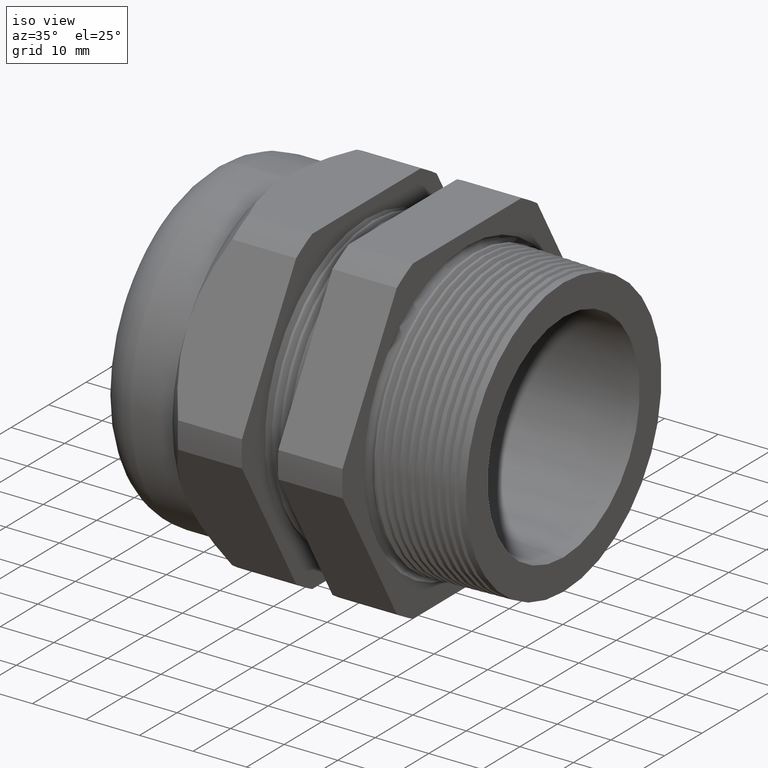
[diagram: clean part render]
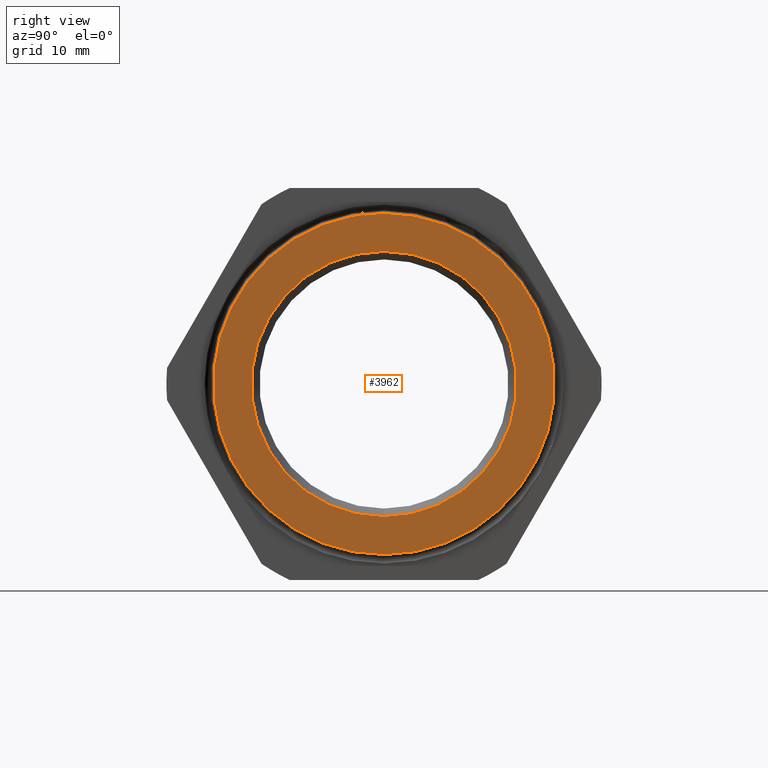
[diagram: tour spotlight — one face highlighted and labeled with its STEP entity id]
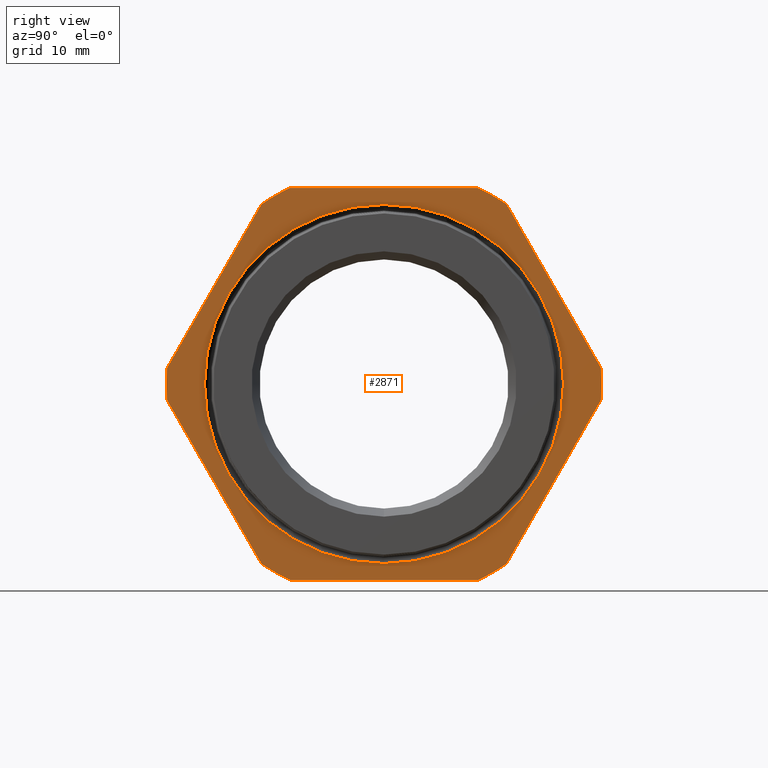
[diagram: tour spotlight — one face highlighted and labeled with its STEP entity id]
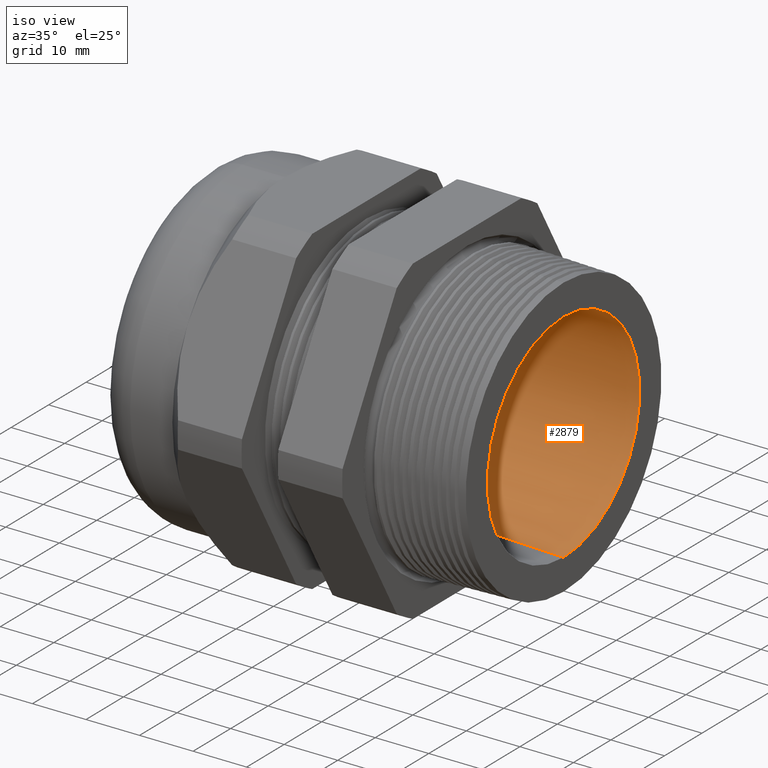
[diagram: tour spotlight — one face highlighted and labeled with its STEP entity id]
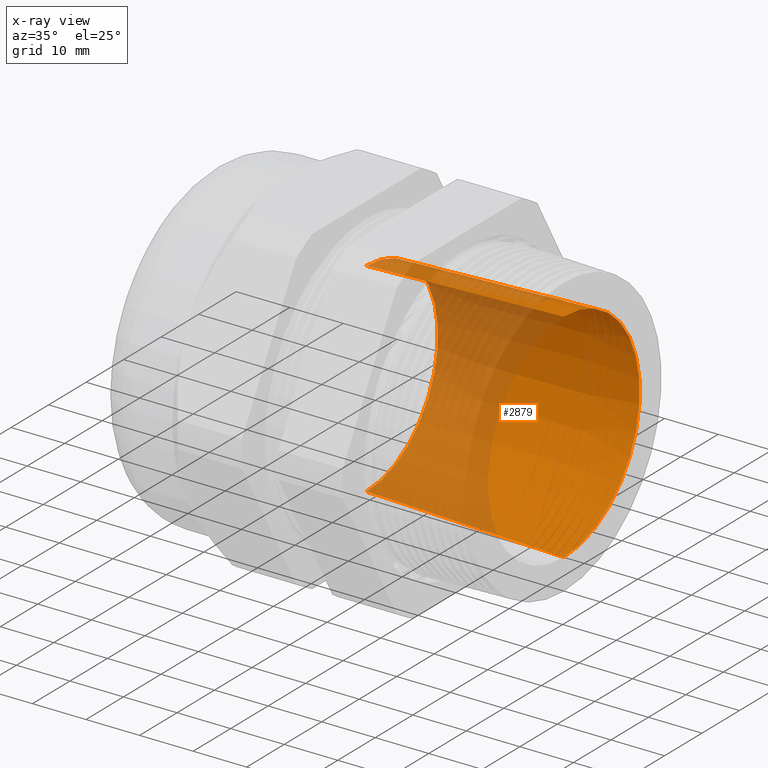
[diagram: x-ray of the same camera — body ghosted, this tour face saturated]
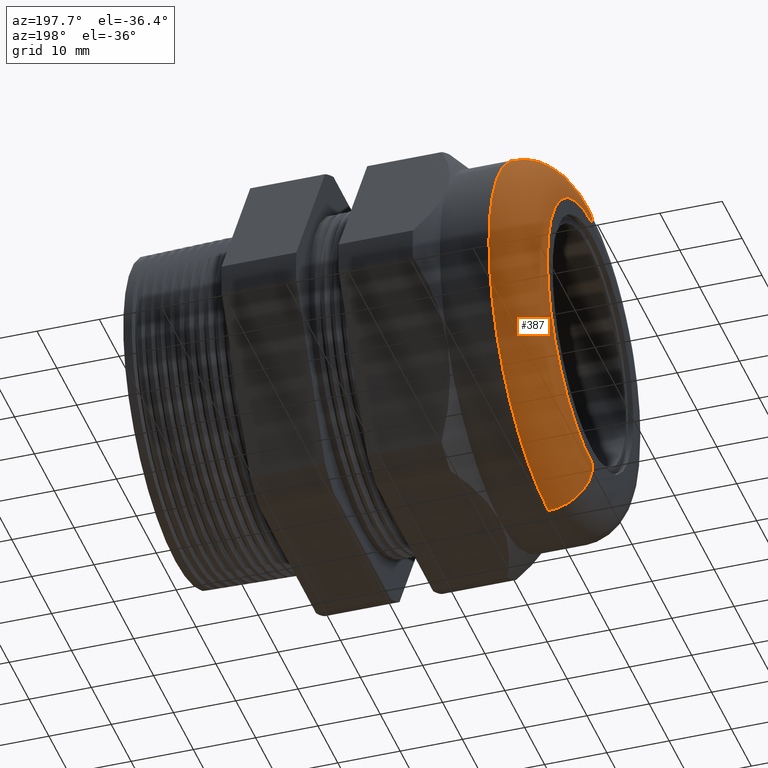
[diagram: tour spotlight — one face highlighted and labeled with its STEP entity id]
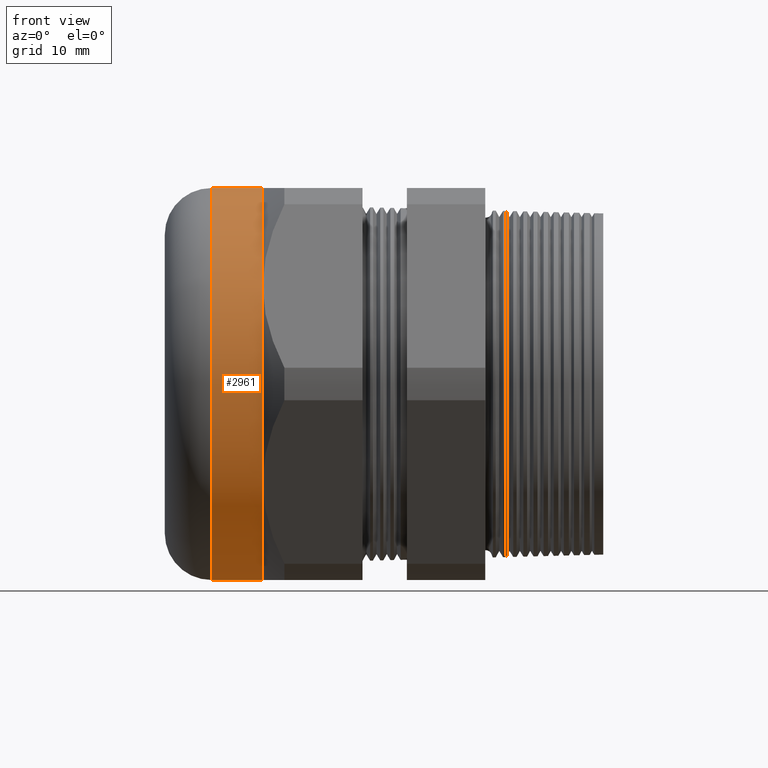
[diagram: tour spotlight — one face highlighted and labeled with its STEP entity id]
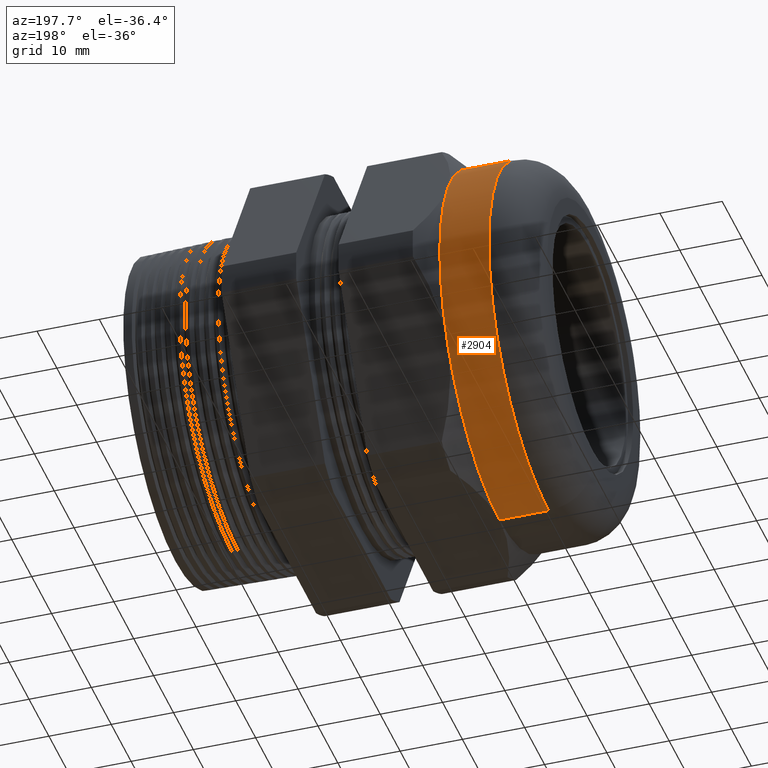
[diagram: tour spotlight — one face highlighted and labeled with its STEP entity id]
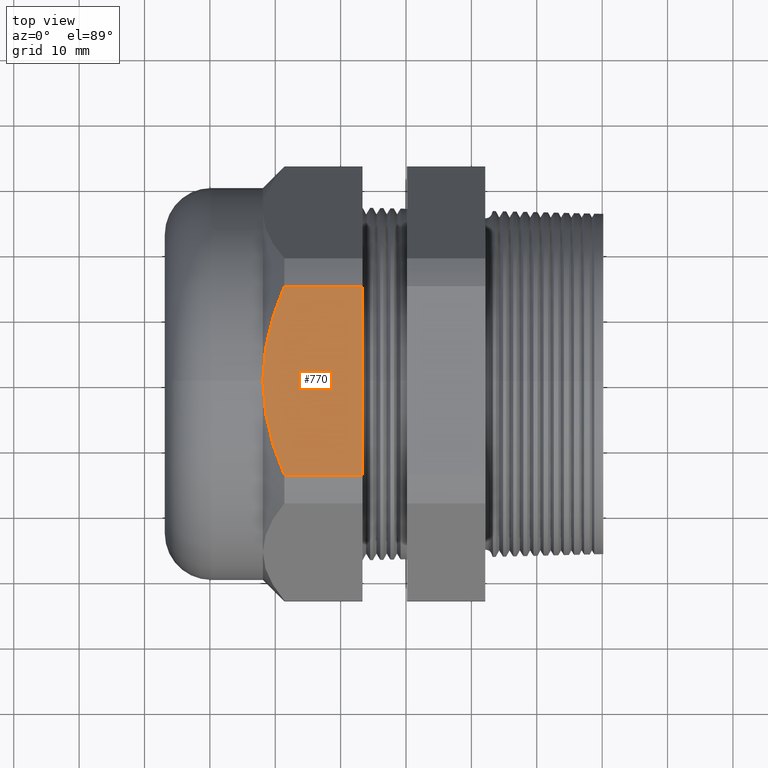
[diagram: tour spotlight — one face highlighted and labeled with its STEP entity id]
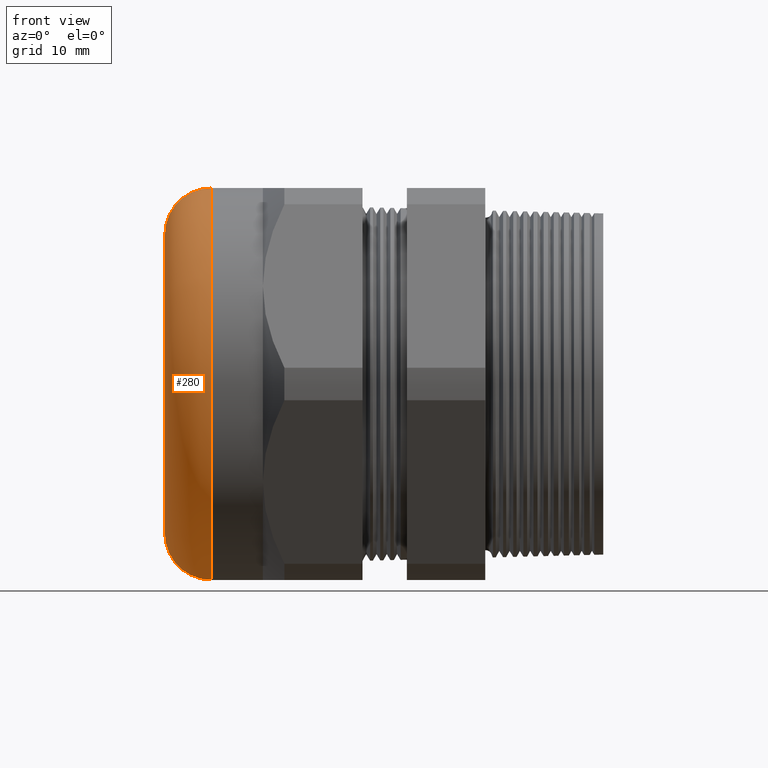
[diagram: tour spotlight — one face highlighted and labeled with its STEP entity id]
A machine part: a face-by-face anatomy tour. The part has 152 B-rep faces; the first image is the clean iso view, then the 8 largest visible faces are spotlighted one at a time (largest first), each with its STEP entity span.

Face 1 — right view, entity #3962. In plain terms, the highlighted planar face has unit normal (1, 0, 0).
Definition (entity closure, byte-faithful):
#44 = VERTEX_POINT ( 'NONE', #590 ) ;
#49 = EDGE_CURVE ( 'NONE', #44, #3858, #641, .T. ) ;
#71 = VERTEX_POINT ( 'NONE', #654 ) ;
#81 = EDGE_CURVE ( 'NONE', #89, #71, #695, .T. ) ;
#89 = VERTEX_POINT ( 'NONE', #677 ) ;
#590 = CARTESIAN_POINT ( 'NONE',  ( 0.3999999999999999700, 1.258626897728897300E-016, -1.027044815981552200 ) ) ;
#634 = DIRECTION ( 'NONE',  ( 0.0000000000000000000, 0.0000000000000000000, -1.000000000000000000 ) ) ;
#635 = DIRECTION ( 'NONE',  ( 1.000000000000000000, 0.0000000000000000000, 0.0000000000000000000 ) ) ;
#636 = CARTESIAN_POINT ( 'NONE',  ( 0.3999999999999999700, 0.0000000000000000000, 0.0000000000000000000 ) ) ;
#637 = AXIS2_PLACEMENT_3D ( 'NONE', #636, #635, #634 ) ;
#641 = CIRCLE ( 'NONE', #637, 1.027044815981552200 ) ;
#654 = CARTESIAN_POINT ( 'NONE',  ( 0.4000000000000000800, 0.0000000000000000000, -0.7987499999999999600 ) ) ;
#677 = CARTESIAN_POINT ( 'NONE',  ( 0.4000000000000000800, 9.781866308189482700E-017, 0.7987499999999999600 ) ) ;
#691 = DIRECTION ( 'NONE',  ( 0.0000000000000000000, 0.0000000000000000000, -1.000000000000000000 ) ) ;
#692 = DIRECTION ( 'NONE',  ( 1.000000000000000000, 0.0000000000000000000, 0.0000000000000000000 ) ) ;
#693 = CARTESIAN_POINT ( 'NONE',  ( 0.4000000000000000800, 0.0000000000000000000, 0.0000000000000000000 ) ) ;
#694 = AXIS2_PLACEMENT_3D ( 'NONE', #693, #692, #691 ) ;
#695 = CIRCLE ( 'NONE', #694, 0.7987499999999999600 ) ;
#2573 = CARTESIAN_POINT ( 'NONE',  ( 0.3999999999999999700, 0.0000000000000000000, 1.027044815981552200 ) ) ;
#2880 = ORIENTED_EDGE ( 'NONE', *, *, #81, .F. ) ;
#3314 = DIRECTION ( 'NONE',  ( 0.0000000000000000000, 0.0000000000000000000, -1.000000000000000000 ) ) ;
#3315 = DIRECTION ( 'NONE',  ( 1.000000000000000000, 0.0000000000000000000, 0.0000000000000000000 ) ) ;
#3316 = CARTESIAN_POINT ( 'NONE',  ( 0.3999999999999999700, 0.0000000000000000000, 0.0000000000000000000 ) ) ;
#3317 = AXIS2_PLACEMENT_3D ( 'NONE', #3316, #3315, #3314 ) ;
#3318 = CIRCLE ( 'NONE', #3317, 1.027044815981552200 ) ;
#3324 = DIRECTION ( 'NONE',  ( 0.0000000000000000000, 0.0000000000000000000, -1.000000000000000000 ) ) ;
#3325 = DIRECTION ( 'NONE',  ( 1.000000000000000000, 0.0000000000000000000, 0.0000000000000000000 ) ) ;
#3326 = CARTESIAN_POINT ( 'NONE',  ( 0.4000000000000000200, 0.7987499999999999600, 0.0000000000000000000 ) ) ;
#3327 = AXIS2_PLACEMENT_3D ( 'NONE', #3326, #3325, #3324 ) ;
#3328 = PLANE ( 'NONE',  #3327 ) ;
#3329 = FACE_BOUND ( 'NONE', #3959, .T. ) ;
#3330 = FACE_OUTER_BOUND ( 'NONE', #3960, .T. ) ;
#3335 = DIRECTION ( 'NONE',  ( 0.0000000000000000000, 0.0000000000000000000, -1.000000000000000000 ) ) ;
#3336 = DIRECTION ( 'NONE',  ( 1.000000000000000000, 0.0000000000000000000, 0.0000000000000000000 ) ) ;
#3337 = AXIS2_PLACEMENT_3D ( 'NONE', #3343, #3336, #3335 ) ;
#3338 = CIRCLE ( 'NONE', #3337, 0.7987499999999999600 ) ;
#3343 = CARTESIAN_POINT ( 'NONE',  ( 0.4000000000000000800, 0.0000000000000000000, 0.0000000000000000000 ) ) ;
#3858 = VERTEX_POINT ( 'NONE', #2573 ) ;
#3954 = EDGE_CURVE ( 'NONE', #71, #89, #3338, .T. ) ;
#3955 = ORIENTED_EDGE ( 'NONE', *, *, #3954, .F. ) ;
#3959 = EDGE_LOOP ( 'NONE', ( #3955, #2880 ) ) ;
#3960 = EDGE_LOOP ( 'NONE', ( #3964, #3965 ) ) ;
#3962 = ADVANCED_FACE ( 'NONE', ( #3330, #3329 ), #3328, .T. ) ;
#3964 = ORIENTED_EDGE ( 'NONE', *, *, #3967, .T. ) ;
#3965 = ORIENTED_EDGE ( 'NONE', *, *, #49, .T. ) ;
#3967 = EDGE_CURVE ( 'NONE', #3858, #44, #3318, .T. ) ;

Face 2 — right view, entity #2871. In plain terms, the highlighted planar face has unit normal (1, 0, 0).
Definition (entity closure, byte-faithful):
#352 = VERTEX_POINT ( 'NONE', #1215 ) ;
#354 = EDGE_CURVE ( 'NONE', #355, #352, #1214, .T. ) ;
#355 = VERTEX_POINT ( 'NONE', #1209 ) ;
#1209 = CARTESIAN_POINT ( 'NONE',  ( -0.3100000000000000000, 0.0000000000000000000, -1.080624318341934600 ) ) ;
#1210 = DIRECTION ( 'NONE',  ( 0.0000000000000000000, 0.0000000000000000000, -1.000000000000000000 ) ) ;
#1211 = DIRECTION ( 'NONE',  ( -1.000000000000000000, 0.0000000000000000000, 0.0000000000000000000 ) ) ;
#1212 = CARTESIAN_POINT ( 'NONE',  ( -0.3100000000000000000, 0.0000000000000000000, 0.0000000000000000000 ) ) ;
#1213 = AXIS2_PLACEMENT_3D ( 'NONE', #1212, #1211, #1210 ) ;
#1214 = CIRCLE ( 'NONE', #1213, 1.080624318341934600 ) ;
#1215 = CARTESIAN_POINT ( 'NONE',  ( -0.3100000000000000000, 1.323383112538240800E-016, 1.080624318341934600 ) ) ;
#2102 = DIRECTION ( 'NONE',  ( 0.0000000000000000000, 0.0000000000000000000, -1.000000000000000000 ) ) ;
#2103 = DIRECTION ( 'NONE',  ( 1.000000000000000000, 0.0000000000000000000, 0.0000000000000000000 ) ) ;
#2104 = CARTESIAN_POINT ( 'NONE',  ( -0.3100000000000000000, 2.359999999999999900, 0.0000000000000000000 ) ) ;
#2105 = AXIS2_PLACEMENT_3D ( 'NONE', #2104, #2103, #2102 ) ;
#2106 = PLANE ( 'NONE',  #2105 ) ;
#2107 = FACE_BOUND ( 'NONE', #4118, .T. ) ;
#2108 = FACE_OUTER_BOUND ( 'NONE', #2868, .T. ) ;
#2109 = CARTESIAN_POINT ( 'NONE',  ( -0.3100000000000000000, 1.306152847968161000, -0.09767690486835835200 ) ) ;
#2110 = CARTESIAN_POINT ( 'NONE',  ( -0.3100000000000000000, 0.7376671049631152700, -1.082323095131641400 ) ) ;
#2111 = DIRECTION ( 'NONE',  ( 0.0000000000000000000, 0.4999999999999998300, 0.8660254037844386000 ) ) ;
#2112 = VECTOR ( 'NONE', #2111, 39.37007874015748900 ) ;
#2113 = CARTESIAN_POINT ( 'NONE',  ( -0.3100000000000000000, 1.611909976465637700, 0.4319099764656373400 ) ) ;
#2118 = LINE ( 'NONE', #2113, #2112 ) ;
#2866 = EDGE_CURVE ( 'NONE', #2867, #2870, #2118, .T. ) ;
#2867 = VERTEX_POINT ( 'NONE', #2110 ) ;
#2868 = EDGE_LOOP ( 'NONE', ( #2869, #4174, #4176, #4173, #4167, #4164, #4158, #4161, #4156, #4154, #4142, #4117 ) ) ;
#2869 = ORIENTED_EDGE ( 'NONE', *, *, #2866, .T. ) ;
#2870 = VERTEX_POINT ( 'NONE', #2109 ) ;
#2871 = ADVANCED_FACE ( 'NONE', ( #2108, #2107 ), #2106, .T. ) ;
#3567 = CIRCLE ( 'NONE', #3629, 1.080624318341934600 ) ;
#3611 = CARTESIAN_POINT ( 'NONE',  ( -0.3100000000000000000, 0.5684857430050462800, -1.179999999999999900 ) ) ;
#3612 = DIRECTION ( 'NONE',  ( 0.0000000000000000000, 1.000000000000000000, 0.0000000000000000000 ) ) ;
#3613 = VECTOR ( 'NONE', #3612, 39.37007874015748100 ) ;
#3614 = CARTESIAN_POINT ( 'NONE',  ( -0.3100000000000000000, 2.359999999999999900, -1.180000000000000200 ) ) ;
#3615 = LINE ( 'NONE', #3614, #3613 ) ;
#3616 = DIRECTION ( 'NONE',  ( 0.0000000000000000000, 0.0000000000000000000, -1.000000000000000000 ) ) ;
#3617 = DIRECTION ( 'NONE',  ( 1.000000000000000000, 0.0000000000000000000, 0.0000000000000000000 ) ) ;
#3618 = CARTESIAN_POINT ( 'NONE',  ( -0.3100000000000000000, 0.0000000000000000000, 0.0000000000000000000 ) ) ;
#3619 = AXIS2_PLACEMENT_3D ( 'NONE', #3618, #3617, #3616 ) ;
#3620 = CIRCLE ( 'NONE', #3619, 1.309799999999999900 ) ;
#3626 = DIRECTION ( 'NONE',  ( 0.0000000000000000000, 0.0000000000000000000, -1.000000000000000000 ) ) ;
#3627 = DIRECTION ( 'NONE',  ( -1.000000000000000000, 0.0000000000000000000, 0.0000000000000000000 ) ) ;
#3628 = CARTESIAN_POINT ( 'NONE',  ( -0.3100000000000000000, 0.0000000000000000000, 0.0000000000000000000 ) ) ;
#3629 = AXIS2_PLACEMENT_3D ( 'NONE', #3628, #3627, #3626 ) ;
#3630 = AXIS2_PLACEMENT_3D ( 'NONE', #3636, #3689, #3688 ) ;
#3631 = CIRCLE ( 'NONE', #3630, 1.309800000000000100 ) ;
#3636 = CARTESIAN_POINT ( 'NONE',  ( -0.3100000000000000000, 0.0000000000000000000, 0.0000000000000000000 ) ) ;
#3639 = CARTESIAN_POINT ( 'NONE',  ( -0.3100000000000000000, -0.5684857430050462800, -1.180000000000000200 ) ) ;
#3661 = CARTESIAN_POINT ( 'NONE',  ( -0.3100000000000000000, -1.306152847968161000, -0.09767690486835753400 ) ) ;
#3662 = DIRECTION ( 'NONE',  ( 0.0000000000000000000, 0.0000000000000000000, -1.000000000000000000 ) ) ;
#3663 = DIRECTION ( 'NONE',  ( 1.000000000000000000, 0.0000000000000000000, 0.0000000000000000000 ) ) ;
#3664 = CARTESIAN_POINT ( 'NONE',  ( -0.3100000000000000000, 0.0000000000000000000, 0.0000000000000000000 ) ) ;
#3665 = AXIS2_PLACEMENT_3D ( 'NONE', #3664, #3663, #3662 ) ;
#3666 = CIRCLE ( 'NONE', #3665, 1.309800000000000100 ) ;
#3672 = CARTESIAN_POINT ( 'NONE',  ( -0.3100000000000000000, -0.7376671049631138300, -1.082323095131642500 ) ) ;
#3673 = DIRECTION ( 'NONE',  ( 0.0000000000000000000, 0.5000000000000000000, -0.8660254037844386000 ) ) ;
#3674 = VECTOR ( 'NONE', #3673, 39.37007874015748100 ) ;
#3675 = CARTESIAN_POINT ( 'NONE',  ( -0.3100000000000000000, -0.4319099764656371700, -1.611909976465637500 ) ) ;
#3676 = LINE ( 'NONE', #3675, #3674 ) ;
#3688 = DIRECTION ( 'NONE',  ( 0.0000000000000000000, 0.0000000000000000000, -1.000000000000000000 ) ) ;
#3689 = DIRECTION ( 'NONE',  ( 1.000000000000000000, 0.0000000000000000000, 0.0000000000000000000 ) ) ;
#3690 = DIRECTION ( 'NONE',  ( 0.0000000000000000000, 0.0000000000000000000, -1.000000000000000000 ) ) ;
#3691 = DIRECTION ( 'NONE',  ( 1.000000000000000000, 0.0000000000000000000, 0.0000000000000000000 ) ) ;
#3692 = CARTESIAN_POINT ( 'NONE',  ( -0.3100000000000000000, 0.0000000000000000000, 0.0000000000000000000 ) ) ;
#3693 = AXIS2_PLACEMENT_3D ( 'NONE', #3692, #3691, #3690 ) ;
#3694 = CIRCLE ( 'NONE', #3693, 1.309800000000000100 ) ;
#3695 = DIRECTION ( 'NONE',  ( 0.0000000000000000000, -0.4999999999999998300, 0.8660254037844386000 ) ) ;
#3696 = VECTOR ( 'NONE', #3695, 39.37007874015748900 ) ;
#3697 = CARTESIAN_POINT ( 'NONE',  ( -0.3100000000000000000, 1.611909976465637700, -0.4319099764656374500 ) ) ;
#3698 = LINE ( 'NONE', #3697, #3696 ) ;
#3699 = CARTESIAN_POINT ( 'NONE',  ( -0.3100000000000000000, 0.7376671049631148300, 1.082323095131641800 ) ) ;
#3700 = CARTESIAN_POINT ( 'NONE',  ( -0.3100000000000000000, 1.306152847968161000, 0.09767690486835799200 ) ) ;
#3701 = CARTESIAN_POINT ( 'NONE',  ( -0.3100000000000000000, 0.5684857430050472800, 1.179999999999999900 ) ) ;
#3702 = DIRECTION ( 'NONE',  ( 0.0000000000000000000, 0.0000000000000000000, -1.000000000000000000 ) ) ;
#3703 = DIRECTION ( 'NONE',  ( 1.000000000000000000, 0.0000000000000000000, 0.0000000000000000000 ) ) ;
#3704 = CARTESIAN_POINT ( 'NONE',  ( -0.3100000000000000000, 0.0000000000000000000, 0.0000000000000000000 ) ) ;
#3705 = AXIS2_PLACEMENT_3D ( 'NONE', #3704, #3703, #3702 ) ;
#3706 = CIRCLE ( 'NONE', #3705, 1.309800000000000100 ) ;
#3707 = CARTESIAN_POINT ( 'NONE',  ( -0.3100000000000000000, -0.5684857430050480600, 1.179999999999999300 ) ) ;
#3708 = DIRECTION ( 'NONE',  ( 0.0000000000000000000, -1.000000000000000000, 0.0000000000000000000 ) ) ;
#3709 = VECTOR ( 'NONE', #3708, 39.37007874015748100 ) ;
#3710 = CARTESIAN_POINT ( 'NONE',  ( -0.3100000000000000000, 2.359999999999999900, 1.179999999999999900 ) ) ;
#3711 = LINE ( 'NONE', #3710, #3709 ) ;
#3712 = CARTESIAN_POINT ( 'NONE',  ( -0.3100000000000000000, -0.7376671049631149400, 1.082323095131641800 ) ) ;
#3713 = DIRECTION ( 'NONE',  ( 0.0000000000000000000, 0.0000000000000000000, -1.000000000000000000 ) ) ;
#3714 = DIRECTION ( 'NONE',  ( 1.000000000000000000, 0.0000000000000000000, 0.0000000000000000000 ) ) ;
#3715 = CARTESIAN_POINT ( 'NONE',  ( -0.3100000000000000000, 0.0000000000000000000, 0.0000000000000000000 ) ) ;
#3716 = AXIS2_PLACEMENT_3D ( 'NONE', #3715, #3714, #3713 ) ;
#3717 = CIRCLE ( 'NONE', #3716, 1.309800000000000100 ) ;
#3718 = CARTESIAN_POINT ( 'NONE',  ( -0.3100000000000000000, -1.306152847968161200, 0.09767690486835675600 ) ) ;
#3719 = DIRECTION ( 'NONE',  ( 0.0000000000000000000, -0.4999999999999995600, -0.8660254037844389300 ) ) ;
#3720 = VECTOR ( 'NONE', #3719, 39.37007874015748100 ) ;
#3721 = CARTESIAN_POINT ( 'NONE',  ( -0.3100000000000000000, -0.4319099764656398900, 1.611909976465636800 ) ) ;
#3722 = LINE ( 'NONE', #3721, #3720 ) ;
#4114 = ORIENTED_EDGE ( 'NONE', *, *, #4115, .T. ) ;
#4115 = EDGE_CURVE ( 'NONE', #352, #355, #3567, .T. ) ;
#4117 = ORIENTED_EDGE ( 'NONE', *, *, #4120, .T. ) ;
#4118 = EDGE_LOOP ( 'NONE', ( #4119, #4114 ) ) ;
#4119 = ORIENTED_EDGE ( 'NONE', *, *, #354, .T. ) ;
#4120 = EDGE_CURVE ( 'NONE', #4122, #2867, #3620, .T. ) ;
#4121 = EDGE_CURVE ( 'NONE', #4140, #4122, #3615, .T. ) ;
#4122 = VERTEX_POINT ( 'NONE', #3611 ) ;
#4140 = VERTEX_POINT ( 'NONE', #3639 ) ;
#4142 = ORIENTED_EDGE ( 'NONE', *, *, #4121, .T. ) ;
#4143 = EDGE_CURVE ( 'NONE', #4152, #4140, #3631, .T. ) ;
#4150 = EDGE_CURVE ( 'NONE', #4157, #4152, #3676, .T. ) ;
#4152 = VERTEX_POINT ( 'NONE', #3672 ) ;
#4154 = ORIENTED_EDGE ( 'NONE', *, *, #4143, .T. ) ;
#4155 = EDGE_CURVE ( 'NONE', #4160, #4157, #3666, .T. ) ;
#4156 = ORIENTED_EDGE ( 'NONE', *, *, #4150, .T. ) ;
#4157 = VERTEX_POINT ( 'NONE', #3661 ) ;
#4158 = ORIENTED_EDGE ( 'NONE', *, *, #4159, .T. ) ;
#4159 = EDGE_CURVE ( 'NONE', #4163, #4160, #3722, .T. ) ;
#4160 = VERTEX_POINT ( 'NONE', #3718 ) ;
#4161 = ORIENTED_EDGE ( 'NONE', *, *, #4155, .T. ) ;
#4162 = EDGE_CURVE ( 'NONE', #4166, #4163, #3717, .T. ) ;
#4163 = VERTEX_POINT ( 'NONE', #3712 ) ;
#4164 = ORIENTED_EDGE ( 'NONE', *, *, #4162, .T. ) ;
#4165 = EDGE_CURVE ( 'NONE', #4169, #4166, #3711, .T. ) ;
#4166 = VERTEX_POINT ( 'NONE', #3707 ) ;
#4167 = ORIENTED_EDGE ( 'NONE', *, *, #4165, .T. ) ;
#4168 = EDGE_CURVE ( 'NONE', #4171, #4169, #3706, .T. ) ;
#4169 = VERTEX_POINT ( 'NONE', #3701 ) ;
#4170 = VERTEX_POINT ( 'NONE', #3700 ) ;
#4171 = VERTEX_POINT ( 'NONE', #3699 ) ;
#4172 = EDGE_CURVE ( 'NONE', #4170, #4171, #3698, .T. ) ;
#4173 = ORIENTED_EDGE ( 'NONE', *, *, #4168, .T. ) ;
#4174 = ORIENTED_EDGE ( 'NONE', *, *, #4175, .T. ) ;
#4175 = EDGE_CURVE ( 'NONE', #2870, #4170, #3694, .T. ) ;
#4176 = ORIENTED_EDGE ( 'NONE', *, *, #4172, .T. ) ;

Face 3 — iso view, entity #2879. An x-ray twin of the same camera follows (body ghosted, this face saturated) — the face is partly hidden behind the body. In plain terms, the highlighted conical surface has half-angle 1.926 deg.
Definition (entity closure, byte-faithful):
#70 = EDGE_CURVE ( 'NONE', #2991, #71, #658, .T. ) ;
#71 = VERTEX_POINT ( 'NONE', #654 ) ;
#85 = EDGE_CURVE ( 'NONE', #2990, #89, #689, .T. ) ;
#89 = VERTEX_POINT ( 'NONE', #677 ) ;
#654 = CARTESIAN_POINT ( 'NONE',  ( 0.4000000000000000800, 0.0000000000000000000, -0.7987499999999999600 ) ) ;
#655 = DIRECTION ( 'NONE',  ( 0.9994348750263168900, 0.0000000000000000000, -0.03361444006866936400 ) ) ;
#656 = VECTOR ( 'NONE', #655, 39.37007874015748100 ) ;
#657 = CARTESIAN_POINT ( 'NONE',  ( -1.049449999999999500, 0.0000000000000000000, -0.7500000000000001100 ) ) ;
#658 = LINE ( 'NONE', #657, #656 ) ;
#677 = CARTESIAN_POINT ( 'NONE',  ( 0.4000000000000000800, 9.781866308189482700E-017, 0.7987499999999999600 ) ) ;
#686 = DIRECTION ( 'NONE',  ( 0.9994348750263168900, 4.116581643522647400E-018, 0.03361444006866936400 ) ) ;
#687 = VECTOR ( 'NONE', #686, 39.37007874015748100 ) ;
#688 = CARTESIAN_POINT ( 'NONE',  ( -1.049449999999999500, 9.184850993605150900E-017, 0.7500000000000001100 ) ) ;
#689 = LINE ( 'NONE', #688, #687 ) ;
#2094 = CIRCLE ( 'NONE', #2159, 0.7500000000000001100 ) ;
#2099 = CARTESIAN_POINT ( 'NONE',  ( -1.049449999999999500, 0.0000000000000000000, 0.0000000000000000000 ) ) ;
#2150 = DIRECTION ( 'NONE',  ( 0.0000000000000000000, 0.0000000000000000000, -1.000000000000000000 ) ) ;
#2151 = DIRECTION ( 'NONE',  ( 1.000000000000000000, 0.0000000000000000000, 0.0000000000000000000 ) ) ;
#2152 = CARTESIAN_POINT ( 'NONE',  ( -1.049449999999999500, 0.0000000000000000000, 0.0000000000000000000 ) ) ;
#2153 = AXIS2_PLACEMENT_3D ( 'NONE', #2152, #2151, #2150 ) ;
#2155 = CONICAL_SURFACE ( 'NONE', #2153, 0.7500000000000001100, 0.03362077362024480000 ) ;
#2156 = FACE_OUTER_BOUND ( 'NONE', #2878, .T. ) ;
#2157 = DIRECTION ( 'NONE',  ( 0.0000000000000000000, 0.0000000000000000000, -1.000000000000000000 ) ) ;
#2158 = DIRECTION ( 'NONE',  ( 1.000000000000000000, 0.0000000000000000000, 0.0000000000000000000 ) ) ;
#2159 = AXIS2_PLACEMENT_3D ( 'NONE', #2099, #2158, #2157 ) ;
#2344 = CARTESIAN_POINT ( 'NONE',  ( -1.049449999999999500, 0.0000000000000000000, -0.7500000000000001100 ) ) ;
#2345 = CARTESIAN_POINT ( 'NONE',  ( -1.049449999999999500, 9.483358650897316200E-017, 0.7500000000000001100 ) ) ;
#2873 = ORIENTED_EDGE ( 'NONE', *, *, #70, .T. ) ;
#2874 = ORIENTED_EDGE ( 'NONE', *, *, #2876, .F. ) ;
#2875 = ORIENTED_EDGE ( 'NONE', *, *, #3954, .T. ) ;
#2876 = EDGE_CURVE ( 'NONE', #2991, #2990, #2094, .T. ) ;
#2877 = ORIENTED_EDGE ( 'NONE', *, *, #85, .F. ) ;
#2878 = EDGE_LOOP ( 'NONE', ( #2877, #2874, #2873, #2875 ) ) ;
#2879 = ADVANCED_FACE ( 'NONE', ( #2156 ), #2155, .F. ) ;
#2990 = VERTEX_POINT ( 'NONE', #2345 ) ;
#2991 = VERTEX_POINT ( 'NONE', #2344 ) ;
#3335 = DIRECTION ( 'NONE',  ( 0.0000000000000000000, 0.0000000000000000000, -1.000000000000000000 ) ) ;
#3336 = DIRECTION ( 'NONE',  ( 1.000000000000000000, 0.0000000000000000000, 0.0000000000000000000 ) ) ;
#3337 = AXIS2_PLACEMENT_3D ( 'NONE', #3343, #3336, #3335 ) ;
#3338 = CIRCLE ( 'NONE', #3337, 0.7987499999999999600 ) ;
#3343 = CARTESIAN_POINT ( 'NONE',  ( 0.4000000000000000800, 0.0000000000000000000, 0.0000000000000000000 ) ) ;
#3954 = EDGE_CURVE ( 'NONE', #71, #89, #3338, .T. ) ;

Face 4 — auxiliary view, entity #387. In plain terms, the highlighted toroidal blend (fillet) surface has major radius 22.86 mm and minor (blend) radius 7.112 mm.
Definition (entity closure, byte-faithful):
#387 = ADVANCED_FACE ( 'NONE', ( #1283 ), #1282, .T. ) ;
#388 = EDGE_LOOP ( 'NONE', ( #389, #393, #396, #399 ) ) ;
#389 = ORIENTED_EDGE ( 'NONE', *, *, #390, .F. ) ;
#390 = EDGE_CURVE ( 'NONE', #391, #392, #1278, .T. ) ;
#391 = VERTEX_POINT ( 'NONE', #1273 ) ;
#392 = VERTEX_POINT ( 'NONE', #1272 ) ;
#393 = ORIENTED_EDGE ( 'NONE', *, *, #394, .T. ) ;
#394 = EDGE_CURVE ( 'NONE', #391, #395, #1271, .T. ) ;
#395 = VERTEX_POINT ( 'NONE', #1266 ) ;
#396 = ORIENTED_EDGE ( 'NONE', *, *, #397, .F. ) ;
#397 = EDGE_CURVE ( 'NONE', #398, #395, #1264, .T. ) ;
#398 = VERTEX_POINT ( 'NONE', #1259 ) ;
#399 = ORIENTED_EDGE ( 'NONE', *, *, #400, .F. ) ;
#400 = EDGE_CURVE ( 'NONE', #392, #398, #1257, .T. ) ;
#1255 = CARTESIAN_POINT ( 'NONE',  ( -1.959999999999999500, 0.0000000000000000000, 0.8999999999999999100 ) ) ;
#1256 = AXIS2_PLACEMENT_3D ( 'NONE', #1255, #1317, #1316 ) ;
#1257 = CIRCLE ( 'NONE', #1256, 0.2800000000000000300 ) ;
#1259 = CARTESIAN_POINT ( 'NONE',  ( -2.239999999999999800, 0.0000000000000000000, 0.8999999999999999100 ) ) ;
#1260 = DIRECTION ( 'NONE',  ( 0.0000000000000000000, 0.0000000000000000000, 1.000000000000000000 ) ) ;
#1261 = DIRECTION ( 'NONE',  ( -1.000000000000000000, 0.0000000000000000000, 0.0000000000000000000 ) ) ;
#1262 = CARTESIAN_POINT ( 'NONE',  ( -2.239999999999999800, 0.0000000000000000000, 0.0000000000000000000 ) ) ;
#1263 = AXIS2_PLACEMENT_3D ( 'NONE', #1262, #1261, #1260 ) ;
#1264 = CIRCLE ( 'NONE', #1263, 0.8999999999999999100 ) ;
#1266 = CARTESIAN_POINT ( 'NONE',  ( -2.239999999999999800, 1.273632671113247200E-016, -0.8999999999999999100 ) ) ;
#1267 = DIRECTION ( 'NONE',  ( 0.0000000000000000000, -1.224646799147353000E-016, 1.000000000000000000 ) ) ;
#1268 = DIRECTION ( 'NONE',  ( 0.0000000000000000000, 1.000000000000000000, 1.224646799147353200E-016 ) ) ;
#1269 = CARTESIAN_POINT ( 'NONE',  ( -1.959999999999999500, 1.102182119232617800E-016, -0.8999999999999999100 ) ) ;
#1270 = AXIS2_PLACEMENT_3D ( 'NONE', #1269, #1268, #1267 ) ;
#1271 = CIRCLE ( 'NONE', #1270, 0.2800000000000000300 ) ;
#1272 = CARTESIAN_POINT ( 'NONE',  ( -1.959999999999999500, 1.445083222993876800E-016, 1.179999999999999900 ) ) ;
#1273 = CARTESIAN_POINT ( 'NONE',  ( -1.959999999999999500, 0.0000000000000000000, -1.179999999999999900 ) ) ;
#1274 = DIRECTION ( 'NONE',  ( 0.0000000000000000000, 0.0000000000000000000, 1.000000000000000000 ) ) ;
#1275 = DIRECTION ( 'NONE',  ( 1.000000000000000000, 0.0000000000000000000, 0.0000000000000000000 ) ) ;
#1276 = CARTESIAN_POINT ( 'NONE',  ( -1.959999999999999500, 0.0000000000000000000, 0.0000000000000000000 ) ) ;
#1277 = AXIS2_PLACEMENT_3D ( 'NONE', #1276, #1275, #1274 ) ;
#1278 = CIRCLE ( 'NONE', #1277, 1.179999999999999900 ) ;
#1279 = DIRECTION ( 'NONE',  ( 0.0000000000000000000, 0.0000000000000000000, 1.000000000000000000 ) ) ;
#1280 = DIRECTION ( 'NONE',  ( -1.000000000000000000, 0.0000000000000000000, 0.0000000000000000000 ) ) ;
#1281 = AXIS2_PLACEMENT_3D ( 'NONE', #1287, #1280, #1279 ) ;
#1282 = TOROIDAL_SURFACE ( 'NONE', #1281, 0.8999999999999999100, 0.2800000000000000300 ) ;
#1283 = FACE_OUTER_BOUND ( 'NONE', #388, .T. ) ;
#1287 = CARTESIAN_POINT ( 'NONE',  ( -1.959999999999999500, 0.0000000000000000000, 0.0000000000000000000 ) ) ;
#1316 = DIRECTION ( 'NONE',  ( 0.0000000000000000000, 0.0000000000000000000, -1.000000000000000000 ) ) ;
#1317 = DIRECTION ( 'NONE',  ( 0.0000000000000000000, -1.000000000000000000, 0.0000000000000000000 ) ) ;

Face 5 — front view, entity #2961. In plain terms, the highlighted cylindrical surface (partial cylindrical patch) has radius 29.972 mm, axis along (1, 0, 0).
Definition (entity closure, byte-faithful):
#111 = VERTEX_POINT ( 'NONE', #707 ) ;
#132 = VERTEX_POINT ( 'NONE', #799 ) ;
#391 = VERTEX_POINT ( 'NONE', #1273 ) ;
#392 = VERTEX_POINT ( 'NONE', #1272 ) ;
#707 = CARTESIAN_POINT ( 'NONE',  ( -1.649449999999999600, -1.021909976465637400, -0.5899999999999999700 ) ) ;
#799 = CARTESIAN_POINT ( 'NONE',  ( -1.649449999999999600, -1.021909976465638100, 0.5899999999999995200 ) ) ;
#1272 = CARTESIAN_POINT ( 'NONE',  ( -1.959999999999999500, 1.445083222993876800E-016, 1.179999999999999900 ) ) ;
#1273 = CARTESIAN_POINT ( 'NONE',  ( -1.959999999999999500, 0.0000000000000000000, -1.179999999999999900 ) ) ;
#2224 = DIRECTION ( 'NONE',  ( 0.0000000000000000000, 0.0000000000000000000, -1.000000000000000000 ) ) ;
#2225 = DIRECTION ( 'NONE',  ( 1.000000000000000000, 0.0000000000000000000, 0.0000000000000000000 ) ) ;
#2226 = CARTESIAN_POINT ( 'NONE',  ( -1.649449999999999600, 0.0000000000000000000, 0.0000000000000000000 ) ) ;
#2227 = AXIS2_PLACEMENT_3D ( 'NONE', #2226, #2225, #2224 ) ;
#2228 = CIRCLE ( 'NONE', #2227, 1.179999999999999900 ) ;
#2232 = DIRECTION ( 'NONE',  ( 0.0000000000000000000, 0.0000000000000000000, -1.000000000000000000 ) ) ;
#2233 = DIRECTION ( 'NONE',  ( 1.000000000000000000, 0.0000000000000000000, 0.0000000000000000000 ) ) ;
#2234 = CARTESIAN_POINT ( 'NONE',  ( -1.649449999999999600, 0.0000000000000000000, 0.0000000000000000000 ) ) ;
#2235 = AXIS2_PLACEMENT_3D ( 'NONE', #2234, #2233, #2232 ) ;
#2236 = CIRCLE ( 'NONE', #2235, 1.179999999999999900 ) ;
#2256 = DIRECTION ( 'NONE',  ( 0.0000000000000000000, 0.0000000000000000000, -1.000000000000000000 ) ) ;
#2257 = DIRECTION ( 'NONE',  ( 1.000000000000000000, 0.0000000000000000000, 0.0000000000000000000 ) ) ;
#2258 = CARTESIAN_POINT ( 'NONE',  ( 0.0000000000000000000, 0.0000000000000000000, 0.0000000000000000000 ) ) ;
#2259 = AXIS2_PLACEMENT_3D ( 'NONE', #2258, #2257, #2256 ) ;
#2261 = CYLINDRICAL_SURFACE ( 'NONE', #2259, 1.179999999999999900 ) ;
#2262 = FACE_OUTER_BOUND ( 'NONE', #2895, .T. ) ;
#2276 = CARTESIAN_POINT ( 'NONE',  ( -1.649449999999999600, 0.0000000000000000000, -1.180000000000000200 ) ) ;
#2279 = DIRECTION ( 'NONE',  ( 0.0000000000000000000, 0.0000000000000000000, -1.000000000000000000 ) ) ;
#2280 = DIRECTION ( 'NONE',  ( 1.000000000000000000, 0.0000000000000000000, 0.0000000000000000000 ) ) ;
#2281 = CARTESIAN_POINT ( 'NONE',  ( -1.649449999999999600, 0.0000000000000000000, 0.0000000000000000000 ) ) ;
#2282 = AXIS2_PLACEMENT_3D ( 'NONE', #2281, #2280, #2279 ) ;
#2283 = CIRCLE ( 'NONE', #2282, 1.179999999999999900 ) ;
#2284 = DIRECTION ( 'NONE',  ( 0.0000000000000000000, 0.0000000000000000000, 1.000000000000000000 ) ) ;
#2285 = DIRECTION ( 'NONE',  ( 1.000000000000000000, 0.0000000000000000000, 0.0000000000000000000 ) ) ;
#2286 = CARTESIAN_POINT ( 'NONE',  ( -1.959999999999999500, 0.0000000000000000000, 0.0000000000000000000 ) ) ;
#2287 = AXIS2_PLACEMENT_3D ( 'NONE', #2286, #2285, #2284 ) ;
#2288 = CIRCLE ( 'NONE', #2287, 1.179999999999999900 ) ;
#2295 = DIRECTION ( 'NONE',  ( 1.000000000000000000, 0.0000000000000000000, 0.0000000000000000000 ) ) ;
#2296 = VECTOR ( 'NONE', #2295, 39.37007874015748100 ) ;
#2297 = CARTESIAN_POINT ( 'NONE',  ( 0.0000000000000000000, 1.445083222993876800E-016, 1.179999999999999900 ) ) ;
#2303 = LINE ( 'NONE', #2297, #2296 ) ;
#2304 = CARTESIAN_POINT ( 'NONE',  ( -1.649449999999999600, 0.0000000000000000000, 1.179999999999999900 ) ) ;
#2895 = EDGE_LOOP ( 'NONE', ( #2950, #2951, #2947, #2944, #2943, #2931 ) ) ;
#2931 = ORIENTED_EDGE ( 'NONE', *, *, #2941, .F. ) ;
#2941 = EDGE_CURVE ( 'NONE', #2972, #132, #2236, .T. ) ;
#2943 = ORIENTED_EDGE ( 'NONE', *, *, #2948, .F. ) ;
#2944 = ORIENTED_EDGE ( 'NONE', *, *, #2945, .F. ) ;
#2945 = EDGE_CURVE ( 'NONE', #111, #2955, #2228, .T. ) ;
#2946 = EDGE_CURVE ( 'NONE', #392, #391, #2288, .T. ) ;
#2947 = ORIENTED_EDGE ( 'NONE', *, *, #4075, .T. ) ;
#2948 = EDGE_CURVE ( 'NONE', #132, #111, #2283, .T. ) ;
#2950 = ORIENTED_EDGE ( 'NONE', *, *, #2976, .F. ) ;
#2951 = ORIENTED_EDGE ( 'NONE', *, *, #2946, .T. ) ;
#2955 = VERTEX_POINT ( 'NONE', #2276 ) ;
#2961 = ADVANCED_FACE ( 'NONE', ( #2262 ), #2261, .T. ) ;
#2972 = VERTEX_POINT ( 'NONE', #2304 ) ;
#2976 = EDGE_CURVE ( 'NONE', #392, #2972, #2303, .T. ) ;
#3510 = DIRECTION ( 'NONE',  ( 1.000000000000000000, 0.0000000000000000000, 0.0000000000000000000 ) ) ;
#3511 = VECTOR ( 'NONE', #3510, 39.37007874015748100 ) ;
#3512 = CARTESIAN_POINT ( 'NONE',  ( 0.0000000000000000000, 0.0000000000000000000, -1.179999999999999900 ) ) ;
#3513 = LINE ( 'NONE', #3512, #3511 ) ;
#4075 = EDGE_CURVE ( 'NONE', #391, #2955, #3513, .T. ) ;

Face 6 — auxiliary view, entity #2904. In plain terms, the highlighted cylindrical surface (partial cylindrical patch) has radius 29.972 mm, axis along (1, 0, 0).
Definition (entity closure, byte-faithful):
#390 = EDGE_CURVE ( 'NONE', #391, #392, #1278, .T. ) ;
#391 = VERTEX_POINT ( 'NONE', #1273 ) ;
#392 = VERTEX_POINT ( 'NONE', #1272 ) ;
#1272 = CARTESIAN_POINT ( 'NONE',  ( -1.959999999999999500, 1.445083222993876800E-016, 1.179999999999999900 ) ) ;
#1273 = CARTESIAN_POINT ( 'NONE',  ( -1.959999999999999500, 0.0000000000000000000, -1.179999999999999900 ) ) ;
#1274 = DIRECTION ( 'NONE',  ( 0.0000000000000000000, 0.0000000000000000000, 1.000000000000000000 ) ) ;
#1275 = DIRECTION ( 'NONE',  ( 1.000000000000000000, 0.0000000000000000000, 0.0000000000000000000 ) ) ;
#1276 = CARTESIAN_POINT ( 'NONE',  ( -1.959999999999999500, 0.0000000000000000000, 0.0000000000000000000 ) ) ;
#1277 = AXIS2_PLACEMENT_3D ( 'NONE', #1276, #1275, #1274 ) ;
#1278 = CIRCLE ( 'NONE', #1277, 1.179999999999999900 ) ;
#2183 = DIRECTION ( 'NONE',  ( 0.0000000000000000000, 0.0000000000000000000, -1.000000000000000000 ) ) ;
#2184 = DIRECTION ( 'NONE',  ( 1.000000000000000000, 0.0000000000000000000, 0.0000000000000000000 ) ) ;
#2185 = CARTESIAN_POINT ( 'NONE',  ( 0.0000000000000000000, 0.0000000000000000000, 0.0000000000000000000 ) ) ;
#2186 = AXIS2_PLACEMENT_3D ( 'NONE', #2185, #2184, #2183 ) ;
#2187 = CYLINDRICAL_SURFACE ( 'NONE', #2186, 1.179999999999999900 ) ;
#2188 = FACE_OUTER_BOUND ( 'NONE', #2979, .T. ) ;
#2276 = CARTESIAN_POINT ( 'NONE',  ( -1.649449999999999600, 0.0000000000000000000, -1.180000000000000200 ) ) ;
#2295 = DIRECTION ( 'NONE',  ( 1.000000000000000000, 0.0000000000000000000, 0.0000000000000000000 ) ) ;
#2296 = VECTOR ( 'NONE', #2295, 39.37007874015748100 ) ;
#2297 = CARTESIAN_POINT ( 'NONE',  ( 0.0000000000000000000, 1.445083222993876800E-016, 1.179999999999999900 ) ) ;
#2298 = DIRECTION ( 'NONE',  ( 0.0000000000000000000, 0.0000000000000000000, -1.000000000000000000 ) ) ;
#2299 = DIRECTION ( 'NONE',  ( 1.000000000000000000, 0.0000000000000000000, 0.0000000000000000000 ) ) ;
#2300 = CARTESIAN_POINT ( 'NONE',  ( -1.649449999999999600, 0.0000000000000000000, 0.0000000000000000000 ) ) ;
#2301 = AXIS2_PLACEMENT_3D ( 'NONE', #2300, #2299, #2298 ) ;
#2302 = CIRCLE ( 'NONE', #2301, 1.179999999999999900 ) ;
#2303 = LINE ( 'NONE', #2297, #2296 ) ;
#2304 = CARTESIAN_POINT ( 'NONE',  ( -1.649449999999999600, 0.0000000000000000000, 1.179999999999999900 ) ) ;
#2305 = CARTESIAN_POINT ( 'NONE',  ( -1.649449999999999600, 1.021909976465637900, 0.5899999999999999700 ) ) ;
#2306 = DIRECTION ( 'NONE',  ( 0.0000000000000000000, 0.0000000000000000000, -1.000000000000000000 ) ) ;
#2307 = DIRECTION ( 'NONE',  ( 1.000000000000000000, 0.0000000000000000000, 0.0000000000000000000 ) ) ;
#2308 = CARTESIAN_POINT ( 'NONE',  ( -1.649449999999999600, 0.0000000000000000000, 0.0000000000000000000 ) ) ;
#2309 = AXIS2_PLACEMENT_3D ( 'NONE', #2308, #2307, #2306 ) ;
#2310 = CIRCLE ( 'NONE', #2309, 1.179999999999999900 ) ;
#2311 = DIRECTION ( 'NONE',  ( 0.0000000000000000000, 0.0000000000000000000, -1.000000000000000000 ) ) ;
#2312 = DIRECTION ( 'NONE',  ( 1.000000000000000000, 0.0000000000000000000, 0.0000000000000000000 ) ) ;
#2313 = CARTESIAN_POINT ( 'NONE',  ( -1.649449999999999600, 0.0000000000000000000, 0.0000000000000000000 ) ) ;
#2314 = AXIS2_PLACEMENT_3D ( 'NONE', #2313, #2312, #2311 ) ;
#2315 = CIRCLE ( 'NONE', #2314, 1.179999999999999900 ) ;
#2316 = CARTESIAN_POINT ( 'NONE',  ( -1.649449999999999600, 1.021909976465638300, -0.5900000000000000800 ) ) ;
#2904 = ADVANCED_FACE ( 'NONE', ( #2188 ), #2187, .T. ) ;
#2955 = VERTEX_POINT ( 'NONE', #2276 ) ;
#2966 = ORIENTED_EDGE ( 'NONE', *, *, #2968, .F. ) ;
#2967 = VERTEX_POINT ( 'NONE', #2316 ) ;
#2968 = EDGE_CURVE ( 'NONE', #2967, #2971, #2315, .T. ) ;
#2969 = ORIENTED_EDGE ( 'NONE', *, *, #2970, .F. ) ;
#2970 = EDGE_CURVE ( 'NONE', #2955, #2967, #2310, .T. ) ;
#2971 = VERTEX_POINT ( 'NONE', #2305 ) ;
#2972 = VERTEX_POINT ( 'NONE', #2304 ) ;
#2973 = ORIENTED_EDGE ( 'NONE', *, *, #2974, .F. ) ;
#2974 = EDGE_CURVE ( 'NONE', #2971, #2972, #2302, .T. ) ;
#2975 = ORIENTED_EDGE ( 'NONE', *, *, #2976, .T. ) ;
#2976 = EDGE_CURVE ( 'NONE', #392, #2972, #2303, .T. ) ;
#2979 = EDGE_LOOP ( 'NONE', ( #2980, #2975, #2973, #2966, #2969, #4072 ) ) ;
#2980 = ORIENTED_EDGE ( 'NONE', *, *, #390, .T. ) ;
#3510 = DIRECTION ( 'NONE',  ( 1.000000000000000000, 0.0000000000000000000, 0.0000000000000000000 ) ) ;
#3511 = VECTOR ( 'NONE', #3510, 39.37007874015748100 ) ;
#3512 = CARTESIAN_POINT ( 'NONE',  ( 0.0000000000000000000, 0.0000000000000000000, -1.179999999999999900 ) ) ;
#3513 = LINE ( 'NONE', #3512, #3511 ) ;
#4072 = ORIENTED_EDGE ( 'NONE', *, *, #4075, .F. ) ;
#4075 = EDGE_CURVE ( 'NONE', #391, #2955, #3513, .T. ) ;

Face 7 — top view, entity #770. In plain terms, the highlighted planar face has unit normal (0, 0, 1).
Definition (entity closure, byte-faithful):
#144 = VERTEX_POINT ( 'NONE', #821 ) ;
#155 = EDGE_LOOP ( 'NONE', ( #735, #505, #510, #488, #497 ) ) ;
#484 = VERTEX_POINT ( 'NONE', #1434 ) ;
#488 = ORIENTED_EDGE ( 'NONE', *, *, #503, .F. ) ;
#496 = EDGE_CURVE ( 'NONE', #2652, #484, #1469, .T. ) ;
#497 = ORIENTED_EDGE ( 'NONE', *, *, #496, .F. ) ;
#503 = EDGE_CURVE ( 'NONE', #484, #507, #1458, .T. ) ;
#505 = ORIENTED_EDGE ( 'NONE', *, *, #508, .T. ) ;
#507 = VERTEX_POINT ( 'NONE', #1449 ) ;
#508 = EDGE_CURVE ( 'NONE', #144, #2972, #1448, .T. ) ;
#510 = ORIENTED_EDGE ( 'NONE', *, *, #511, .T. ) ;
#511 = EDGE_CURVE ( 'NONE', #2972, #507, #1509, .T. ) ;
#735 = ORIENTED_EDGE ( 'NONE', *, *, #2653, .T. ) ;
#770 = ADVANCED_FACE ( 'NONE', ( #1563 ), #1562, .T. ) ;
#821 = CARTESIAN_POINT ( 'NONE',  ( -1.519649999999999700, 0.5684857430050472800, 1.179999999999999900 ) ) ;
#1434 = CARTESIAN_POINT ( 'NONE',  ( -1.049449999999999500, -0.5684857430050480600, 1.179999999999999300 ) ) ;
#1448 = B_SPLINE_CURVE_WITH_KNOTS ( 'NONE', 3,
 ( #1507, #1506, #1505, #1504, #1503, #1502, #1501, #1500, #1499, #1498, #1497, #1496, #1495, #1494 ),
 .UNSPECIFIED., .F., .F.,
 ( 4, 2, 2, 2, 2, 2, 4 ),
 ( 0.02312264008600803400, 0.02496726841570489500, 0.02681189674540175900, 0.03050115340479549200, 0.03419041006418922100, 0.03603503839388608900, 0.03787966672358295000 ),
 .UNSPECIFIED. ) ;
#1449 = CARTESIAN_POINT ( 'NONE',  ( -1.519649999999999700, -0.5684857430050480600, 1.179999999999999300 ) ) ;
#1455 = DIRECTION ( 'NONE',  ( -1.000000000000000000, 0.0000000000000000000, 0.0000000000000000000 ) ) ;
#1456 = VECTOR ( 'NONE', #1455, 39.37007874015748100 ) ;
#1457 = CARTESIAN_POINT ( 'NONE',  ( 0.4000000000000000800, -0.5684857430050480600, 1.179999999999999300 ) ) ;
#1458 = LINE ( 'NONE', #1457, #1456 ) ;
#1466 = DIRECTION ( 'NONE',  ( 0.0000000000000000000, -1.000000000000000000, 0.0000000000000000000 ) ) ;
#1467 = VECTOR ( 'NONE', #1466, 39.37007874015748100 ) ;
#1468 = CARTESIAN_POINT ( 'NONE',  ( -1.049449999999999500, 1.064999999999999900, 1.179999999999999900 ) ) ;
#1469 = LINE ( 'NONE', #1468, #1467 ) ;
#1484 = CARTESIAN_POINT ( 'NONE',  ( -1.519649999999999700, -0.5684857430050480600, 1.179999999999999300 ) ) ;
#1485 = CARTESIAN_POINT ( 'NONE',  ( -1.539068768920290900, -0.5237445971720000600, 1.179999999999999900 ) ) ;
#1486 = CARTESIAN_POINT ( 'NONE',  ( -1.557001317142279400, -0.4781685191551188200, 1.179999999999999900 ) ) ;
#1487 = CARTESIAN_POINT ( 'NONE',  ( -1.589044817027109200, -0.3848694585838953200, 1.179999999999999900 ) ) ;
#1488 = CARTESIAN_POINT ( 'NONE',  ( -1.602922490269805800, -0.3377790855168900100, 1.179999999999999700 ) ) ;
#1489 = CARTESIAN_POINT ( 'NONE',  ( -1.636945603018218300, -0.1953628694803204700, 1.179999999999999500 ) ) ;
#1490 = CARTESIAN_POINT ( 'NONE',  ( -1.649449999999999200, -0.09872307888765807800, 1.179999999999999700 ) ) ;
#1491 = CARTESIAN_POINT ( 'NONE',  ( -1.649449999999999600, 0.0000000000000000000, 1.179999999999999900 ) ) ;
#1494 = CARTESIAN_POINT ( 'NONE',  ( -1.649449999999999600, 0.0000000000000000000, 1.179999999999999900 ) ) ;
#1495 = CARTESIAN_POINT ( 'NONE',  ( -1.649449999999999900, 0.02463981298731314500, 1.179999999999999900 ) ) ;
#1496 = CARTESIAN_POINT ( 'NONE',  ( -1.648670288809829000, 0.04938518665157104500, 1.180000000000000200 ) ) ;
#1497 = CARTESIAN_POINT ( 'NONE',  ( -1.645607269956346700, 0.09839603538494577600, 1.179999999999999500 ) ) ;
#1498 = CARTESIAN_POINT ( 'NONE',  ( -1.643325625875083000, 0.1227542664684448000, 1.179999999999999900 ) ) ;
#1499 = CARTESIAN_POINT ( 'NONE',  ( -1.634345507774815700, 0.1954099882522379300, 1.180000000000000200 ) ) ;
#1500 = CARTESIAN_POINT ( 'NONE',  ( -1.625509814629517900, 0.2432881085125782300, 1.179999999999999900 ) ) ;
#1501 = CARTESIAN_POINT ( 'NONE',  ( -1.602840876069865100, 0.3380637169268080300, 1.179999999999999900 ) ) ;
#1502 = CARTESIAN_POINT ( 'NONE',  ( -1.589010585478253500, 0.3849617848833479200, 1.179999999999999700 ) ) ;
#1503 = CARTESIAN_POINT ( 'NONE',  ( -1.565069090820137200, 0.4546817482359246700, 1.179999999999999900 ) ) ;
#1504 = CARTESIAN_POINT ( 'NONE',  ( -1.556548450479208400, 0.4778289801658304700, 1.180000000000000200 ) ) ;
#1505 = CARTESIAN_POINT ( 'NONE',  ( -1.538704120711870300, 0.5235141874039063200, 1.179999999999999500 ) ) ;
#1506 = CARTESIAN_POINT ( 'NONE',  ( -1.529362028805732100, 0.5461090774751346000, 1.179999999999999900 ) ) ;
#1507 = CARTESIAN_POINT ( 'NONE',  ( -1.519649999999999700, 0.5684857430050472800, 1.179999999999999900 ) ) ;
#1509 = B_SPLINE_CURVE_WITH_KNOTS ( 'NONE', 3,
 ( #1491, #1490, #1489, #1488, #1487, #1486, #1485, #1484 ),
 .UNSPECIFIED., .F., .F.,
 ( 4, 2, 2, 4 ),
 ( 0.03787966672358295000, 0.04527044473820664200, 0.04896583374551849400, 0.05266122275283034000 ),
 .UNSPECIFIED. ) ;
#1558 = DIRECTION ( 'NONE',  ( 1.000000000000000000, 0.0000000000000000000, 0.0000000000000000000 ) ) ;
#1559 = DIRECTION ( 'NONE',  ( 0.0000000000000000000, 0.0000000000000000000, 1.000000000000000000 ) ) ;
#1560 = CARTESIAN_POINT ( 'NONE',  ( 0.4000000000000000800, -0.5684857430050472800, 1.179999999999999900 ) ) ;
#1561 = AXIS2_PLACEMENT_3D ( 'NONE', #1560, #1559, #1558 ) ;
#1562 = PLANE ( 'NONE',  #1561 ) ;
#1563 = FACE_OUTER_BOUND ( 'NONE', #155, .T. ) ;
#1683 = DIRECTION ( 'NONE',  ( -1.000000000000000000, 0.0000000000000000000, 0.0000000000000000000 ) ) ;
#1684 = VECTOR ( 'NONE', #1683, 39.37007874015748100 ) ;
#1685 = CARTESIAN_POINT ( 'NONE',  ( 0.4000000000000000800, 0.5684857430050472800, 1.179999999999999900 ) ) ;
#1686 = LINE ( 'NONE', #1685, #1684 ) ;
#1687 = CARTESIAN_POINT ( 'NONE',  ( -1.049449999999999500, 0.5684857430050472800, 1.179999999999999900 ) ) ;
#2304 = CARTESIAN_POINT ( 'NONE',  ( -1.649449999999999600, 0.0000000000000000000, 1.179999999999999900 ) ) ;
#2652 = VERTEX_POINT ( 'NONE', #1687 ) ;
#2653 = EDGE_CURVE ( 'NONE', #2652, #144, #1686, .T. ) ;
#2972 = VERTEX_POINT ( 'NONE', #2304 ) ;

Face 8 — front view, entity #280. In plain terms, the highlighted toroidal blend (fillet) surface has major radius 22.86 mm and minor (blend) radius 7.112 mm.
Definition (entity closure, byte-faithful):
#261 = ORIENTED_EDGE ( 'NONE', *, *, #394, .F. ) ;
#262 = ORIENTED_EDGE ( 'NONE', *, *, #2946, .F. ) ;
#263 = ORIENTED_EDGE ( 'NONE', *, *, #400, .T. ) ;
#264 = ORIENTED_EDGE ( 'NONE', *, *, #2902, .F. ) ;
#280 = ADVANCED_FACE ( 'NONE', ( #1085 ), #1084, .T. ) ;
#281 = EDGE_LOOP ( 'NONE', ( #261, #262, #263, #264 ) ) ;
#391 = VERTEX_POINT ( 'NONE', #1273 ) ;
#392 = VERTEX_POINT ( 'NONE', #1272 ) ;
#394 = EDGE_CURVE ( 'NONE', #391, #395, #1271, .T. ) ;
#395 = VERTEX_POINT ( 'NONE', #1266 ) ;
#398 = VERTEX_POINT ( 'NONE', #1259 ) ;
#400 = EDGE_CURVE ( 'NONE', #392, #398, #1257, .T. ) ;
#1081 = DIRECTION ( 'NONE',  ( 0.0000000000000000000, 0.0000000000000000000, 1.000000000000000000 ) ) ;
#1082 = DIRECTION ( 'NONE',  ( -1.000000000000000000, 0.0000000000000000000, 0.0000000000000000000 ) ) ;
#1083 = AXIS2_PLACEMENT_3D ( 'NONE', #1091, #1082, #1081 ) ;
#1084 = TOROIDAL_SURFACE ( 'NONE', #1083, 0.8999999999999999100, 0.2800000000000000300 ) ;
#1085 = FACE_OUTER_BOUND ( 'NONE', #281, .T. ) ;
#1091 = CARTESIAN_POINT ( 'NONE',  ( -1.959999999999999500, 0.0000000000000000000, 0.0000000000000000000 ) ) ;
#1255 = CARTESIAN_POINT ( 'NONE',  ( -1.959999999999999500, 0.0000000000000000000, 0.8999999999999999100 ) ) ;
#1256 = AXIS2_PLACEMENT_3D ( 'NONE', #1255, #1317, #1316 ) ;
#1257 = CIRCLE ( 'NONE', #1256, 0.2800000000000000300 ) ;
#1259 = CARTESIAN_POINT ( 'NONE',  ( -2.239999999999999800, 0.0000000000000000000, 0.8999999999999999100 ) ) ;
#1266 = CARTESIAN_POINT ( 'NONE',  ( -2.239999999999999800, 1.273632671113247200E-016, -0.8999999999999999100 ) ) ;
#1267 = DIRECTION ( 'NONE',  ( 0.0000000000000000000, -1.224646799147353000E-016, 1.000000000000000000 ) ) ;
#1268 = DIRECTION ( 'NONE',  ( 0.0000000000000000000, 1.000000000000000000, 1.224646799147353200E-016 ) ) ;
#1269 = CARTESIAN_POINT ( 'NONE',  ( -1.959999999999999500, 1.102182119232617800E-016, -0.8999999999999999100 ) ) ;
#1270 = AXIS2_PLACEMENT_3D ( 'NONE', #1269, #1268, #1267 ) ;
#1271 = CIRCLE ( 'NONE', #1270, 0.2800000000000000300 ) ;
#1272 = CARTESIAN_POINT ( 'NONE',  ( -1.959999999999999500, 1.445083222993876800E-016, 1.179999999999999900 ) ) ;
#1273 = CARTESIAN_POINT ( 'NONE',  ( -1.959999999999999500, 0.0000000000000000000, -1.179999999999999900 ) ) ;
#1316 = DIRECTION ( 'NONE',  ( 0.0000000000000000000, 0.0000000000000000000, -1.000000000000000000 ) ) ;
#1317 = DIRECTION ( 'NONE',  ( 0.0000000000000000000, -1.000000000000000000, 0.0000000000000000000 ) ) ;
#2128 = DIRECTION ( 'NONE',  ( -1.000000000000000000, 0.0000000000000000000, 0.0000000000000000000 ) ) ;
#2129 = CARTESIAN_POINT ( 'NONE',  ( -2.239999999999999800, 0.0000000000000000000, 0.0000000000000000000 ) ) ;
#2130 = AXIS2_PLACEMENT_3D ( 'NONE', #2129, #2128, #2192 ) ;
#2131 = CIRCLE ( 'NONE', #2130, 0.8999999999999999100 ) ;
#2192 = DIRECTION ( 'NONE',  ( 0.0000000000000000000, 0.0000000000000000000, 1.000000000000000000 ) ) ;
#2284 = DIRECTION ( 'NONE',  ( 0.0000000000000000000, 0.0000000000000000000, 1.000000000000000000 ) ) ;
#2285 = DIRECTION ( 'NONE',  ( 1.000000000000000000, 0.0000000000000000000, 0.0000000000000000000 ) ) ;
#2286 = CARTESIAN_POINT ( 'NONE',  ( -1.959999999999999500, 0.0000000000000000000, 0.0000000000000000000 ) ) ;
#2287 = AXIS2_PLACEMENT_3D ( 'NONE', #2286, #2285, #2284 ) ;
#2288 = CIRCLE ( 'NONE', #2287, 1.179999999999999900 ) ;
#2902 = EDGE_CURVE ( 'NONE', #395, #398, #2131, .T. ) ;
#2946 = EDGE_CURVE ( 'NONE', #392, #391, #2288, .T. ) ;